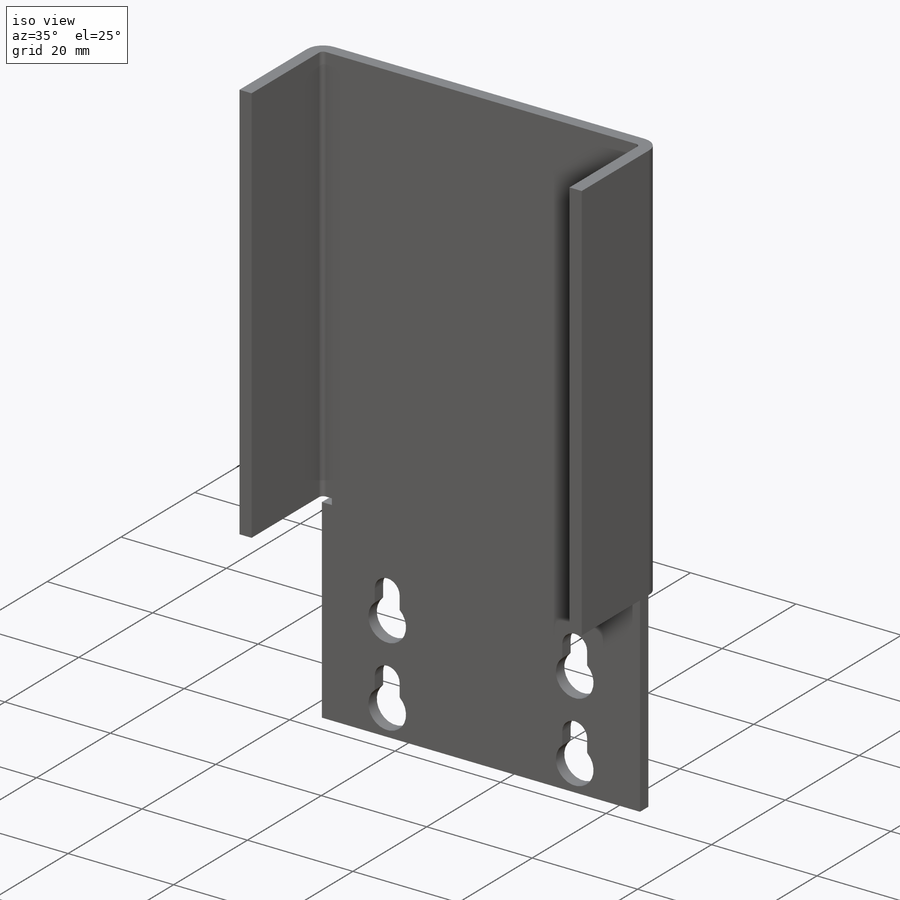
[diagram: iso view]
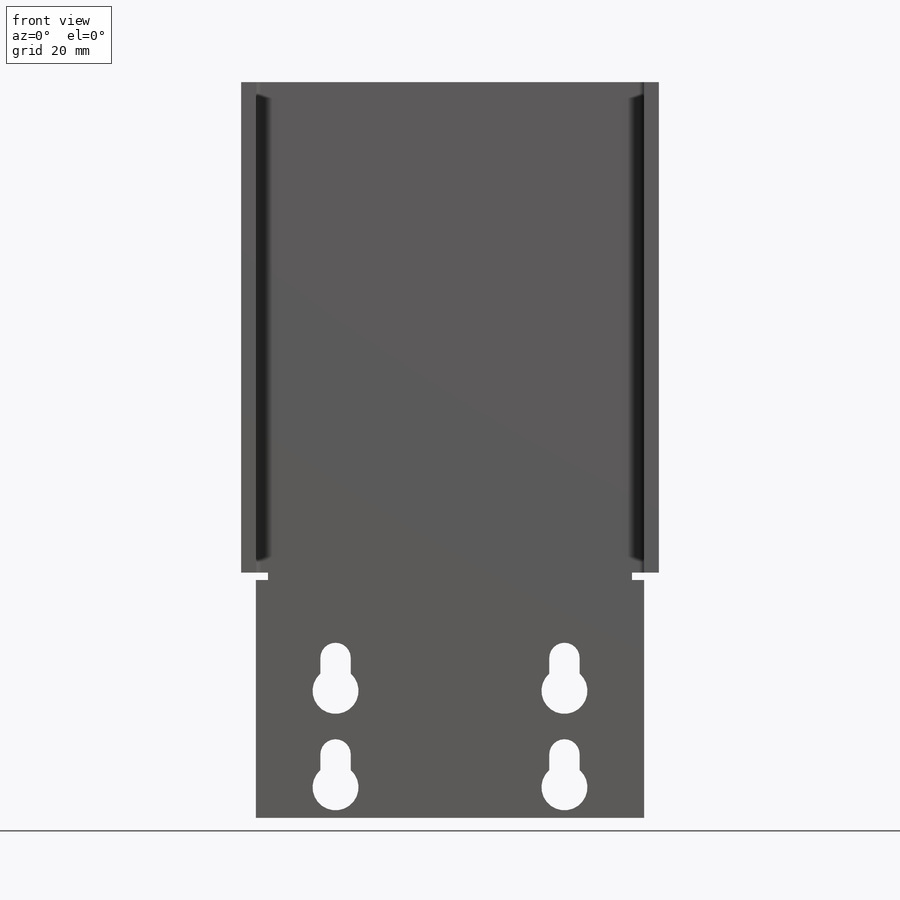
[diagram: front view]
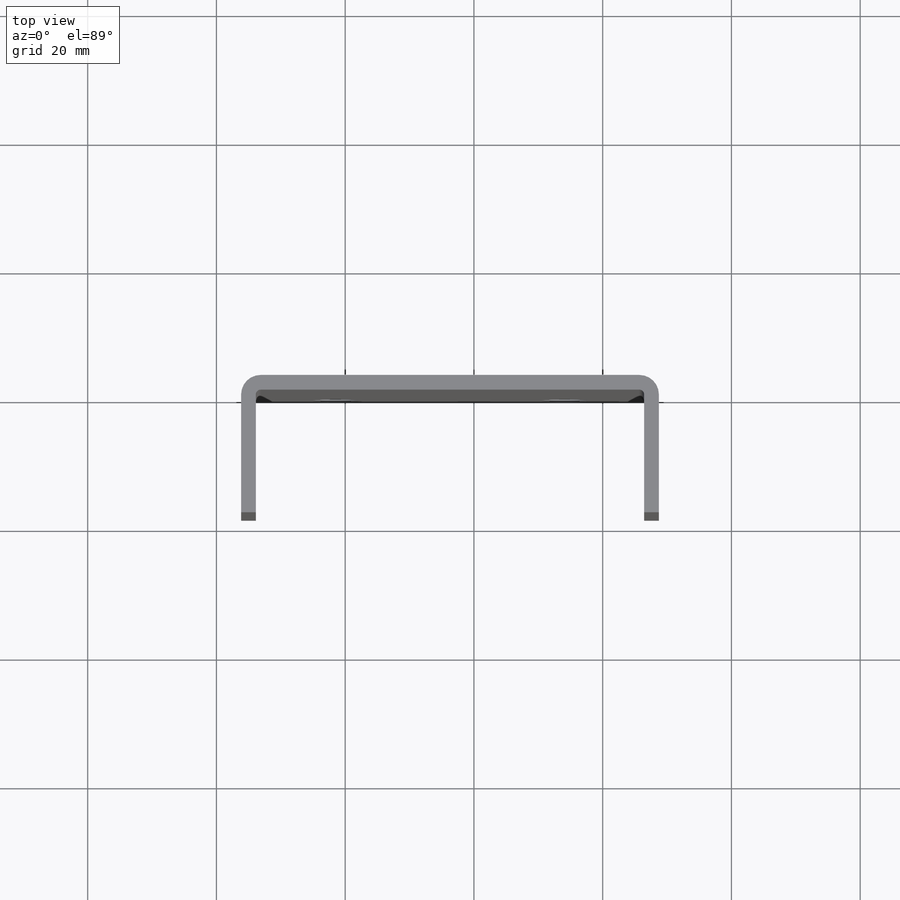
[diagram: top view]
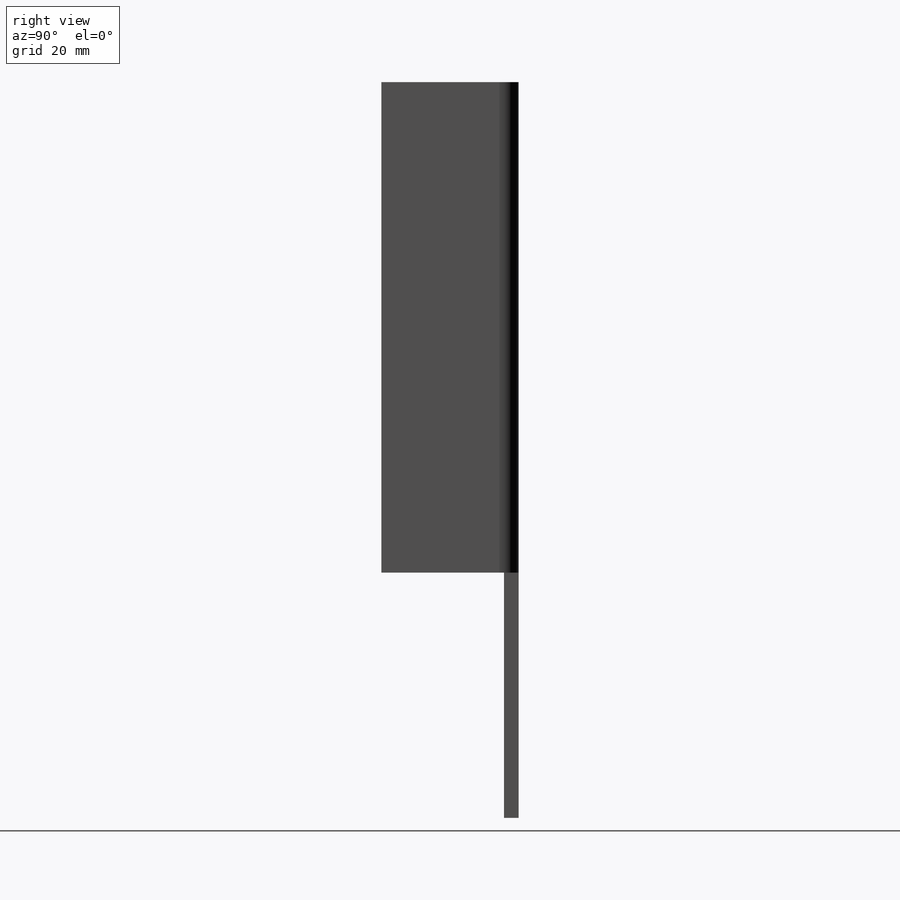
[diagram: right view]
SOLIDWORKS PART (.sldprt)
format: sldprt  version: not decoded by parser v0  size: 271,360 bytes
history: native  units: mm
features: sketch x8, sheet_metal_op x3, material x1, hole x1, cut_extrude x1, pattern_linear x1 + 2 further entries (+11 scaffold rows collapsed; 1 parser-record rows omitted)
feature tree (29):
  scaffold x11  (default folders/planes/origin — collapsed)
  material  "6061-T6 Al"
  sketch  "Sketch1"  dims[D1=60.325mm D2=114.3mm]
  sheet_metal_op  "Sheet-Metal1"
  sheet_metal_op  "Base-Flange1"
  sketch  "Sketch6"  dims[c1.D1=38.1mm c2.D1=0.7366mm c2.D4=90.0deg c2.D5=1.0 c2.D8=1.143mm c2.D9=1.143mm c3.D1=0.7366mm c3.D2=500.0mm c3.D3=0.0mm c3.D6=10.0mm c3.D7=19.05mm c3.Edge-Flange2=0.0]
  sketch  "Sketch9"  dims[D1=38.1mm]
  sheet_metal_op  "EdgeBend2"
  hole  "9/32 (0.28125) Diameter Hole1"  Diameter=7.14375mm Depth=21.336mm
  sketch  "Sketch12"  dims[D1=35.56mm D2=4.7498mm D3=14.986mm]
  sketch  "Sketch13"  dims[hole-wizard template sketch: 60 standard entries collapsed; hole parameters kept: c18.Thru Hole Depth=21.336mm]
  sketch  "Sketch14"  dims[c1.D1=~1.452254mm c1.D2=2.3622mm c2.D1=5.1054mm]
  cut_extrude  "Cut-Extrude1"  [1 undecoded]
  pattern_linear  "LPattern1"  Count1=2 Count2=2 Spacing1=35.56mm Spacing2=14.986mm
  "Flat-Pattern1"
  sketch  "Bend-Lines1"
  sketch  "Bounding-Box1"
  parser-record x1  (decoder bookkeeping rows leaked as tree rows — omitted from the tree; the rows remain in map.json)
  "Flatten-<EdgeBend2>1"
decode coverage: 8 of 14 modeling features carry decoded parameters; 2 rows unclassified (native names shown)
note: ~ marks probable driven/reference dimensions
note: 1 parameter value undecoded
note: suppression state not decoded; provenance and decode notes live in map.json
